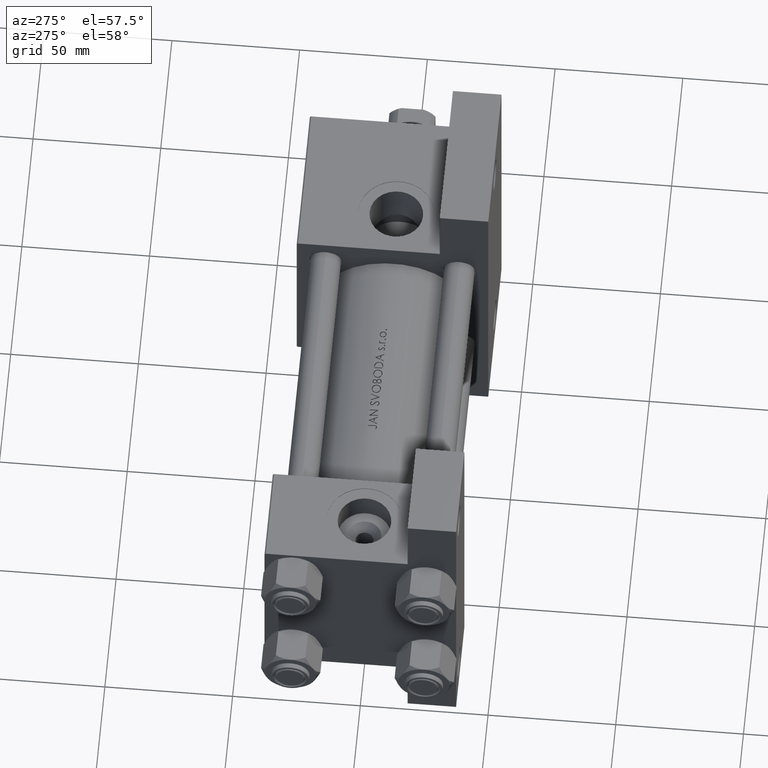
[diagram: clean part render]
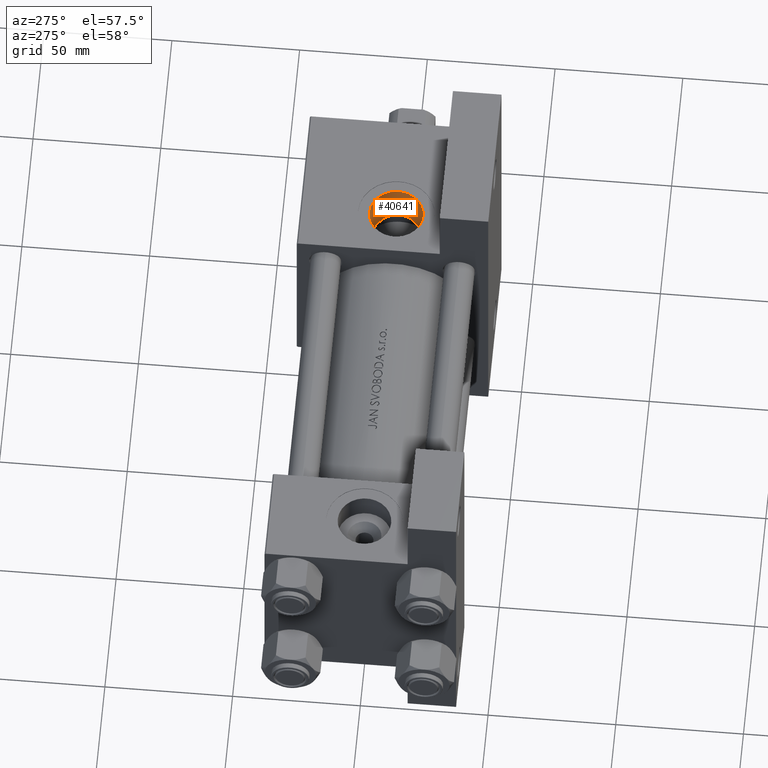
[diagram: same view with one face highlighted and labeled with its STEP entity id]
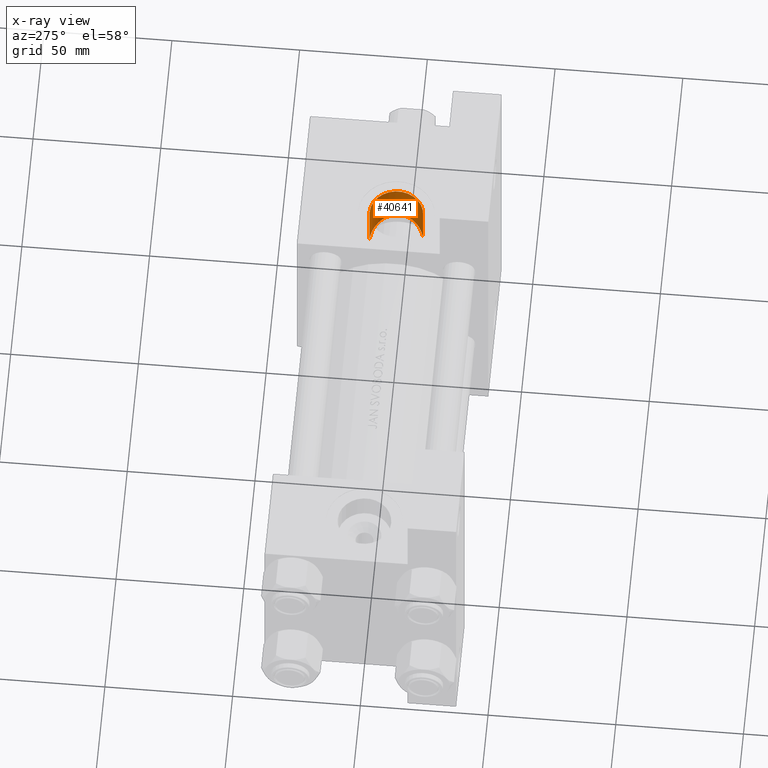
[diagram: x-ray of the same camera — body ghosted, the highlighted face saturated]
A machine part, auxiliary view. The second image highlights one B-rep face of the part: STEP entity #40641.
The next image is the same camera in x-ray: the body ghosted, the highlighted face saturated — about 0% of this face is hidden behind the body in this view.
In plain terms, the highlighted cylindrical surface (edge-blend (fillet) strip) has radius 10.48 mm, axis along (-0, -0, 1).
Its self-contained STEP definition (entity closure, byte-faithful):
#98 = VERTEX_POINT ( 'NONE', #2993 ) ;
#720 = EDGE_CURVE ( 'NONE', #32002, #98, #4218, .T. ) ;
#912 = CARTESIAN_POINT ( 'NONE',  ( 161.3470210746793043, -17.31154528053460595, 10.47999999999999510 ) ) ;
#925 = CARTESIAN_POINT ( 'NONE',  ( 160.9999999999999716, 37.50100000000000477, 10.47999999999999687 ) ) ;
#1154 = CARTESIAN_POINT ( 'NONE',  ( 170.5136165929027925, -19.90621515629138827, 4.408684660160838042 ) ) ;
#1894 = CARTESIAN_POINT ( 'NONE',  ( 169.5247630629396838, -19.72096722719661344, -6.105281524917115732 ) ) ;
#2993 = CARTESIAN_POINT ( 'NONE',  ( 160.9999999999999716, -37.29999999999999716, 10.47999999999998977 ) ) ;
#3781 = CARTESIAN_POINT ( 'NONE',  ( 160.9999999999999716, -17.31154528053461306, 10.47999999999999154 ) ) ;
#4218 = CIRCLE ( 'NONE', #10600, 10.47999999999998622 ) ;
#4626 = CARTESIAN_POINT ( 'NONE',  ( 169.8632463434474857, -19.57285682509593272, 5.602446212762891342 ) ) ;
#5860 = CARTESIAN_POINT ( 'NONE',  ( 161.7047145583874510, -17.91665127801143953, -10.46219065497899692 ) ) ;
#6364 = CARTESIAN_POINT ( 'NONE',  ( 162.7534701870718550, -17.98521153983802634, -10.33810977386607100 ) ) ;
#6433 = VECTOR ( 'NONE', #34968, 1000.000000000000000 ) ;
#6610 = CARTESIAN_POINT ( 'NONE',  ( 168.6611621740132989, -19.38999619374664363, -7.159076384942104632 ) ) ;
#8129 = CARTESIAN_POINT ( 'NONE',  ( 164.4159050215025957, -17.65012615064442869, 9.931528811289364711 ) ) ;
#8368 = CARTESIAN_POINT ( 'NONE',  ( 170.9112922687107812, -20.12166452589491428, 3.472274471029884957 ) ) ;
#8612 = CARTESIAN_POINT ( 'NONE',  ( 163.7588417203787969, -17.52693762274574851, 10.13402779325157077 ) ) ;
#8627 = DIRECTION ( 'NONE',  ( -0.000000000000000000, -1.000000000000000000, -8.673617379884036705E-17 ) ) ;
#8865 = CARTESIAN_POINT ( 'NONE',  ( 160.9999999999999716, -17.31154528053461306, 10.47999999999999154 ) ) ;
#9665 = CYLINDRICAL_SURFACE ( 'NONE', #34076, 10.47999999999998622 ) ;
#10600 = AXIS2_PLACEMENT_3D ( 'NONE', #24499, #27704, #43428 ) ;
#11875 = CARTESIAN_POINT ( 'NONE',  ( 161.6954312938289604, -17.32248566803110990, 10.46281023584331393 ) ) ;
#12606 = CARTESIAN_POINT ( 'NONE',  ( 166.2787600379286062, -18.12953982762253347, 9.078379935655647159 ) ) ;
#13154 = CARTESIAN_POINT ( 'NONE',  ( 160.9999999999999716, 37.50100000000000477, 9.974746723040443104E-15 ) ) ;
#13359 = CARTESIAN_POINT ( 'NONE',  ( 163.7750123670571156, -18.09812027575558702, -10.12979723076933425 ) ) ;
#13603 = CARTESIAN_POINT ( 'NONE',  ( 169.9026386617617845, -19.87300753805846654, -5.539771893847126094 ) ) ;
#16335 = CARTESIAN_POINT ( 'NONE',  ( 171.4669051482524367, -20.50255402113294068, -0.6300211231001662249 ) ) ;
#16782 = CARTESIAN_POINT ( 'NONE',  ( 160.9999999999999716, -37.29999999999999716, -10.47999999999998266 ) ) ;
#16869 = VERTEX_POINT ( 'NONE', #41780 ) ;
#17074 = CARTESIAN_POINT ( 'NONE',  ( 170.4025389929008441, -20.07976061505709708, -4.641199740976985844 ) ) ;
#18180 = B_SPLINE_CURVE_WITH_KNOTS ( 'NONE', 3,
 ( #8865, #912, #11875, #42264, #34763, #8612, #8129, #23326, #12606, #46489, #38524, #31758, #31025, #4626, #27279, #42504, #1154, #8368, #23562, #19834, #27519, #42741, #20081, #35255, #16335, #31511, #46732, #27762, #39261, #24053, #17074, #40500, #13603, #1894, #40248, #47225, #6610, #32245, #44228, #48200, #32986, #28755, #13359, #6364, #47469, #5860, #29245, #36000 ),
 .UNSPECIFIED., .F., .F.,
 ( 4, 2, 2, 2, 2, 2, 2, 2, 2, 2, 2, 2, 2, 2, 2, 2, 2, 2, 2, 2, 2, 2, 2, 4 ),
 ( 0.03337172289375579803, 0.03441233523662728944, 0.03545294757949878778, 0.03753417226524177058, 0.03961539695098476033, 0.04169662163672774313, 0.04377784632247073981, 0.04481845866534223122, 0.04585907100821372262, 0.04794029569395671930, 0.04898090803682821071, 0.05002152037969970211, 0.05106213272257120045, 0.05210274506544269879, 0.05418396975118568160, 0.05522458209405717994, 0.05626519443692867134, 0.05730580677980016968, 0.05834641912267166108, 0.06042764380841469940, 0.06250886849415773772, 0.06459009317990078991, 0.06563070552277235070, 0.06667131786564391149 ),
 .UNSPECIFIED. ) ;
#18230 = VERTEX_POINT ( 'NONE', #3781 ) ;
#18467 = VECTOR ( 'NONE', #8627, 1000.000000000000000 ) ;
#19834 = CARTESIAN_POINT ( 'NONE',  ( 171.3311065042815073, -20.37409322011633606, 1.794586109409245456 ) ) ;
#20081 = CARTESIAN_POINT ( 'NONE',  ( 171.4776551375225893, -20.48265569949337461, 0.4117595292702391774 ) ) ;
#23019 = ORIENTED_EDGE ( 'NONE', *, *, #46272, .T. ) ;
#23326 = CARTESIAN_POINT ( 'NONE',  ( 165.6848851208463600, -17.95378683072778259, 9.399761861338273405 ) ) ;
#23562 = CARTESIAN_POINT ( 'NONE',  ( 171.1175830810126115, -20.24111318549747551, 2.820020607438576743 ) ) ;
#24053 = CARTESIAN_POINT ( 'NONE',  ( 170.5516556862484947, -20.14238090880650134, -4.326202217588882348 ) ) ;
#24499 = CARTESIAN_POINT ( 'NONE',  ( 160.9999999999999716, -37.29999999999999716, 3.486794186713383443E-15 ) ) ;
#25388 = ORIENTED_EDGE ( 'NONE', *, *, #720, .T. ) ;
#25578 = DIRECTION ( 'NONE',  ( 0.000000000000000000, 0.000000000000000000, -1.000000000000000000 ) ) ;
#25713 = EDGE_CURVE ( 'NONE', #18230, #98, #43248, .T. ) ;
#27279 = CARTESIAN_POINT ( 'NONE',  ( 170.0415136392023214, -19.66186875787549226, 5.310054482731721315 ) ) ;
#27326 = EDGE_LOOP ( 'NONE', ( #34576, #46944, #23019, #25388 ) ) ;
#27519 = CARTESIAN_POINT ( 'NONE',  ( 171.3852102648228310, -20.41012014665353291, 1.448585321857994712 ) ) ;
#27704 = DIRECTION ( 'NONE',  ( 0.000000000000000000, -1.000000000000000000, -8.673617379884036705E-17 ) ) ;
#27762 = CARTESIAN_POINT ( 'NONE',  ( 171.1488622720015371, -20.39261420473474473, -2.705221023230776289 ) ) ;
#28755 = CARTESIAN_POINT ( 'NONE',  ( 164.4291236246858432, -18.20648317701849095, -9.926633415679276595 ) ) ;
#29245 = CARTESIAN_POINT ( 'NONE',  ( 161.3524141148301112, -17.90669148670408362, -10.47999999999997556 ) ) ;
#31025 = CARTESIAN_POINT ( 'NONE',  ( 169.2943842801269909, -19.29805340160766747, 6.441284550439725365 ) ) ;
#31511 = CARTESIAN_POINT ( 'NONE',  ( 171.4015008588858109, -20.48626732390679805, -1.327331865308766901 ) ) ;
#31758 = CARTESIAN_POINT ( 'NONE',  ( 168.8679744497728734, -19.10325731143032968, 6.954996736502839561 ) ) ;
#32002 = VERTEX_POINT ( 'NONE', #16782 ) ;
#32245 = CARTESIAN_POINT ( 'NONE',  ( 167.9416544847751425, -19.13207627753017093, -7.880695095096321268 ) ) ;
#32986 = CARTESIAN_POINT ( 'NONE',  ( 165.6885837709134535, -18.47081169218747831, -9.397559365377063045 ) ) ;
#34076 = AXIS2_PLACEMENT_3D ( 'NONE', #13154, #47765, #25578 ) ;
#34576 = ORIENTED_EDGE ( 'NONE', *, *, #25713, .F. ) ;
#34763 = CARTESIAN_POINT ( 'NONE',  ( 162.7410054315663501, -17.39963274831551132, 10.34017078318249361 ) ) ;
#34968 = DIRECTION ( 'NONE',  ( -0.000000000000000000, -1.000000000000000000, -8.673617379884036705E-17 ) ) ;
#35255 = CARTESIAN_POINT ( 'NONE',  ( 171.4819445000525775, -20.50178181377810915, -0.2822101851753042179 ) ) ;
#36000 = CARTESIAN_POINT ( 'NONE',  ( 160.9999999999999716, -17.90669148670408362, -10.47999999999998089 ) ) ;
#38524 = CARTESIAN_POINT ( 'NONE',  ( 167.9208345979154160, -18.70786800614511236, 7.898040897294844598 ) ) ;
#39261 = CARTESIAN_POINT ( 'NONE',  ( 170.9485359727863738, -20.30891902702526153, -3.366903607565236989 ) ) ;
#40248 = CARTESIAN_POINT ( 'NONE',  ( 169.3225662003738137, -19.64111042044597966, -6.378170050295204341 ) ) ;
#40500 = CARTESIAN_POINT ( 'NONE',  ( 170.0783182432221565, -19.94519646484593167, -5.247152792081113404 ) ) ;
#40641 = ADVANCED_FACE ( 'NONE', ( #40795 ), #9665, .F. ) ;
#40795 = FACE_OUTER_BOUND ( 'NONE', #27326, .T. ) ;
#41598 = EDGE_CURVE ( 'NONE', #18230, #16869, #18180, .T. ) ;
#41780 = CARTESIAN_POINT ( 'NONE',  ( 160.9999999999999716, -17.90669148670408362, -10.47999999999998089 ) ) ;
#42264 = CARTESIAN_POINT ( 'NONE',  ( 162.3951252308202982, -17.36667489365846606, 10.39267281819420319 ) ) ;
#42504 = CARTESIAN_POINT ( 'NONE',  ( 170.3662177968319895, -19.82832408839749760, 4.713768309937338863 ) ) ;
#42741 = CARTESIAN_POINT ( 'NONE',  ( 171.4583245133796936, -20.46430137750835954, 0.7579182357777466406 ) ) ;
#42948 = CARTESIAN_POINT ( 'NONE',  ( 160.9999999999999716, 37.50100000000000477, -10.47999999999997556 ) ) ;
#43191 = LINE ( 'NONE', #42948, #6433 ) ;
#43248 = LINE ( 'NONE', #925, #18467 ) ;
#43428 = DIRECTION ( 'NONE',  ( 0.000000000000000000, 0.000000000000000000, -1.000000000000000000 ) ) ;
#44228 = CARTESIAN_POINT ( 'NONE',  ( 167.4217440813015116, -18.95863385658994815, -8.309672003124298101 ) ) ;
#46272 = EDGE_CURVE ( 'NONE', #16869, #32002, #43191, .T. ) ;
#46489 = CARTESIAN_POINT ( 'NONE',  ( 167.3953719826938880, -18.50579674927558571, 8.329556230503516900 ) ) ;
#46732 = CARTESIAN_POINT ( 'NONE',  ( 171.3507038963578566, -20.46901633175582447, -1.677836523642098010 ) ) ;
#46944 = ORIENTED_EDGE ( 'NONE', *, *, #41598, .T. ) ;
#47225 = CARTESIAN_POINT ( 'NONE',  ( 168.8913372837819225, -19.47582360453931116, -6.904560610471913940 ) ) ;
#47469 = CARTESIAN_POINT ( 'NONE',  ( 162.4044395936603280, -17.95581939429250085, -10.39141979412303840 ) ) ;
#47765 = DIRECTION ( 'NONE',  ( -0.000000000000000000, -1.000000000000000000, -8.673617379884036705E-17 ) ) ;
#48200 = CARTESIAN_POINT ( 'NONE',  ( 166.2983228447828594, -18.62849765410346947, -9.067371222007592380 ) ) ;